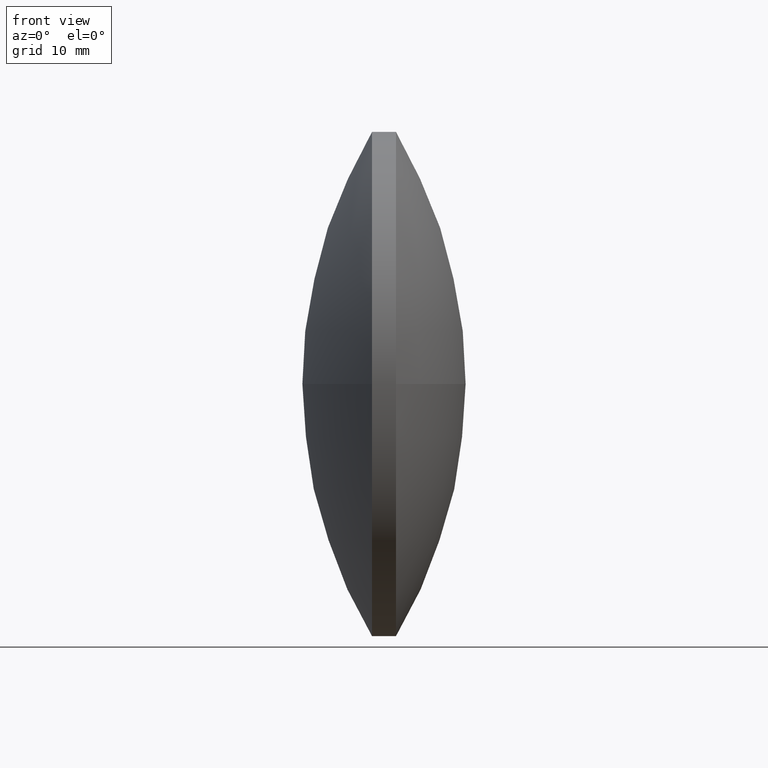
[diagram: clean part render]
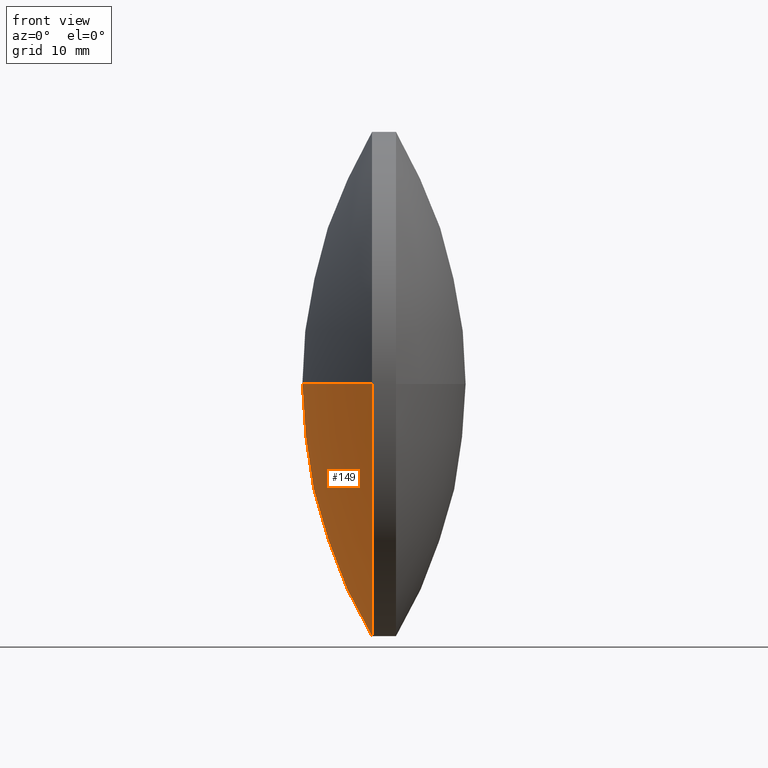
[diagram: same view with one face highlighted and labeled with its STEP entity id]
A machine part, front view. The second image highlights one B-rep face of the part: STEP entity #149.
In plain terms, the highlighted spherical surface has radius 61.3822 mm.
Its self-contained STEP definition (entity closure, byte-faithful):
#16 = VERTEX_POINT ( 'NONE', #141 ) ;
#23 = ORIENTED_EDGE ( 'NONE', *, *, #266, .F. ) ;
#27 = CARTESIAN_POINT ( 'NONE',  ( 212.9444092659714400, 89.08362879359475500, -3.857652847925514500E-015 ) ) ;
#35 = EDGE_CURVE ( 'NONE', #290, #124, #300, .T. ) ;
#45 = CIRCLE ( 'NONE', #119, 31.50012600050371200 ) ;
#48 = VERTEX_POINT ( 'NONE', #27 ) ;
#64 = CARTESIAN_POINT ( 'NONE',  ( 265.6276363051364300, 120.5837547940984400, 0.0000000000000000000 ) ) ;
#83 = CARTESIAN_POINT ( 'NONE',  ( 212.9444092659714400, 120.5837547940985100, 0.0000000000000000000 ) ) ;
#85 = DIRECTION ( 'NONE',  ( 0.0000000000000000000, 0.0000000000000000000, 1.000000000000000000 ) ) ;
#91 = SPHERICAL_SURFACE ( 'NONE', #183, 61.38224783524805200 ) ;
#112 = CARTESIAN_POINT ( 'NONE',  ( 212.9444092659714400, 152.0838807946021800, 0.0000000000000000000 ) ) ;
#116 = CARTESIAN_POINT ( 'NONE',  ( 265.6276363051364300, 120.5837547940984400, 0.0000000000000000000 ) ) ;
#119 = AXIS2_PLACEMENT_3D ( 'NONE', #83, #230, #85 ) ;
#124 = VERTEX_POINT ( 'NONE', #220 ) ;
#127 = AXIS2_PLACEMENT_3D ( 'NONE', #64, #323, #146 ) ;
#131 = AXIS2_PLACEMENT_3D ( 'NONE', #116, #326, #284 ) ;
#139 = CARTESIAN_POINT ( 'NONE',  ( 265.6276363051364300, 120.5837547940984400, 0.0000000000000000000 ) ) ;
#141 = CARTESIAN_POINT ( 'NONE',  ( 204.2453884698883800, 120.5837547940984400, 0.0000000000000000000 ) ) ;
#146 = DIRECTION ( 'NONE',  ( 0.0000000000000000000, 1.000000000000000000, 1.224646799147353500E-016 ) ) ;
#148 = ORIENTED_EDGE ( 'NONE', *, *, #35, .T. ) ;
#149 = ADVANCED_FACE ( 'NONE', ( #249 ), #91, .T. ) ;
#167 = CARTESIAN_POINT ( 'NONE',  ( 212.9444092659714400, 120.5837547940985100, 0.0000000000000000000 ) ) ;
#183 = AXIS2_PLACEMENT_3D ( 'NONE', #139, #223, #197 ) ;
#197 = DIRECTION ( 'NONE',  ( 0.0000000000000000000, 1.000000000000000000, 0.0000000000000000000 ) ) ;
#200 = EDGE_CURVE ( 'NONE', #124, #48, #45, .T. ) ;
#211 = ORIENTED_EDGE ( 'NONE', *, *, #250, .T. ) ;
#220 = CARTESIAN_POINT ( 'NONE',  ( 212.9444092659714400, 120.5837547940985100, -31.50012600050371200 ) ) ;
#223 = DIRECTION ( 'NONE',  ( -0.0000000000000000000, 0.0000000000000000000, -1.000000000000000000 ) ) ;
#230 = DIRECTION ( 'NONE',  ( -1.000000000000000000, -0.0000000000000000000, -0.0000000000000000000 ) ) ;
#248 = DIRECTION ( 'NONE',  ( -1.000000000000000000, -0.0000000000000000000, -0.0000000000000000000 ) ) ;
#249 = FACE_OUTER_BOUND ( 'NONE', #318, .T. ) ;
#250 = EDGE_CURVE ( 'NONE', #48, #16, #333, .T. ) ;
#262 = CIRCLE ( 'NONE', #131, 61.38224783524803700 ) ;
#266 = EDGE_CURVE ( 'NONE', #290, #16, #262, .T. ) ;
#270 = DIRECTION ( 'NONE',  ( 0.0000000000000000000, 0.0000000000000000000, 1.000000000000000000 ) ) ;
#284 = DIRECTION ( 'NONE',  ( 1.000000000000000000, 0.0000000000000000000, 0.0000000000000000000 ) ) ;
#290 = VERTEX_POINT ( 'NONE', #112 ) ;
#300 = CIRCLE ( 'NONE', #316, 31.50012600050371200 ) ;
#315 = ORIENTED_EDGE ( 'NONE', *, *, #200, .T. ) ;
#316 = AXIS2_PLACEMENT_3D ( 'NONE', #167, #248, #270 ) ;
#318 = EDGE_LOOP ( 'NONE', ( #148, #315, #211, #23 ) ) ;
#323 = DIRECTION ( 'NONE',  ( 0.0000000000000000000, 1.224646799147353200E-016, -1.000000000000000000 ) ) ;
#326 = DIRECTION ( 'NONE',  ( -0.0000000000000000000, 0.0000000000000000000, 1.000000000000000000 ) ) ;
#333 = CIRCLE ( 'NONE', #127, 61.38224783524803700 ) ;